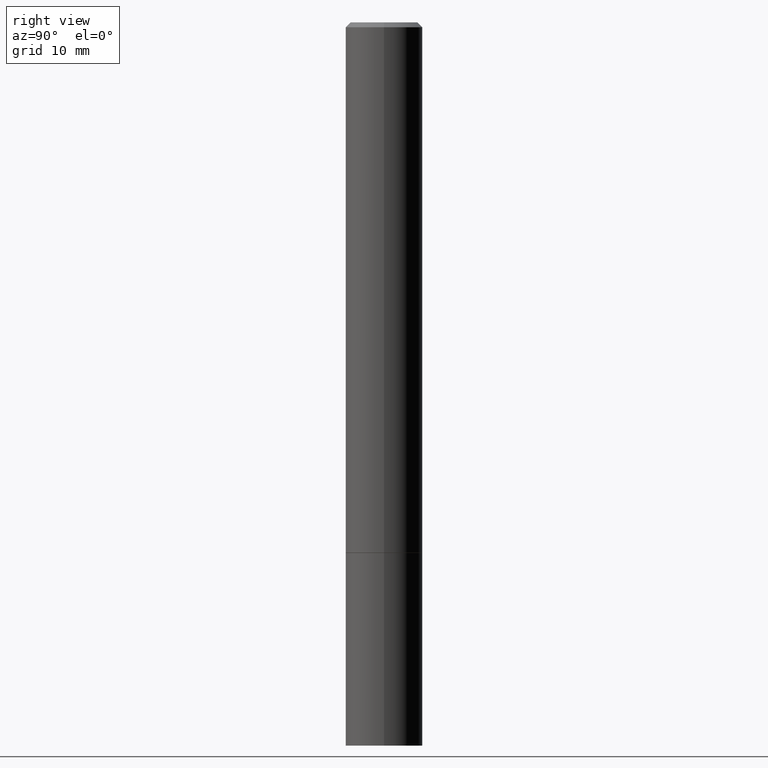
[diagram: clean part render]
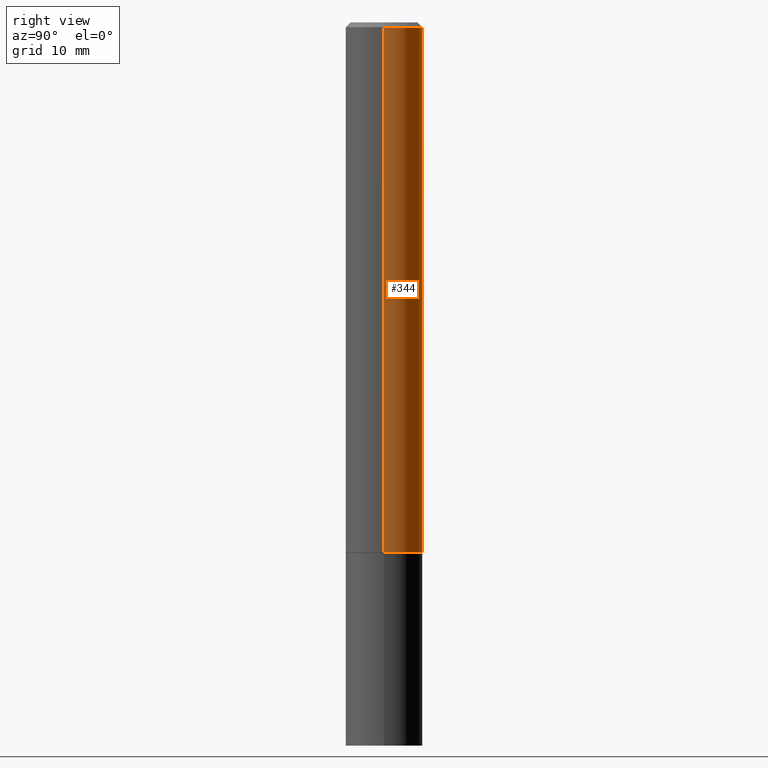
[diagram: same view with one face highlighted and labeled with its STEP entity id]
A machine part, right view. The second image highlights one B-rep face of the part: STEP entity #344.
In plain terms, the highlighted cylindrical surface (partial cylindrical patch) has radius 4.0005 mm, axis along (-0, 0, 1).
Its self-contained STEP definition (entity closure, byte-faithful):
#3 = CARTESIAN_POINT ( 'NONE',  ( 0.1574999999999999178, -8.656778831527689529E-15, -2.164399999999999658 ) ) ;
#4 = CARTESIAN_POINT ( 'NONE',  ( 4.890937612370282792E-31, -6.982962677686303935E-17, -0.02000000000000003858 ) ) ;
#6 = DIRECTION ( 'NONE',  ( -2.445468806185136597E-29, 3.491481338843145583E-15, 1.000000000000000000 ) ) ;
#9 = CARTESIAN_POINT ( 'NONE',  ( 0.000000000000000000, 0.000000000000000000, 0.000000000000000000 ) ) ;
#23 = CARTESIAN_POINT ( 'NONE',  ( 5.292972684107108742E-29, -7.556962209792102838E-15, -2.164399999999999658 ) ) ;
#30 = FACE_OUTER_BOUND ( 'NONE', #66, .T. ) ;
#34 = CARTESIAN_POINT ( 'NONE',  ( 0.1574999999999998346, -1.099816621735585705E-15, 7.679978421878591026E-30 ) ) ;
#47 = DIRECTION ( 'NONE',  ( -2.445468806185136597E-29, 3.491481338843145583E-15, 1.000000000000000000 ) ) ;
#48 = CARTESIAN_POINT ( 'NONE',  ( -0.1574999999999999178, -2.694291109462323887E-15, -2.164399999999999658 ) ) ;
#54 = EDGE_CURVE ( 'NONE', #157, #229, #110, .T. ) ;
#55 = DIRECTION ( 'NONE',  ( 1.000000000000000000, -6.982962677686265922E-15, 4.876176775795935793E-29 ) ) ;
#66 = EDGE_LOOP ( 'NONE', ( #204, #227, #130, #156 ) ) ;
#78 = VECTOR ( 'NONE', #186, 39.37007874015748143 ) ;
#87 = DIRECTION ( 'NONE',  ( -2.445468806185136877E-29, 3.491481338843145188E-15, 1.000000000000000000 ) ) ;
#105 = EDGE_CURVE ( 'NONE', #229, #125, #366, .T. ) ;
#110 = CIRCLE ( 'NONE', #233, 0.1574999999999999178 ) ;
#120 = LINE ( 'NONE', #34, #289 ) ;
#125 = VERTEX_POINT ( 'NONE', #209 ) ;
#130 = ORIENTED_EDGE ( 'NONE', *, *, #245, .F. ) ;
#156 = ORIENTED_EDGE ( 'NONE', *, *, #348, .F. ) ;
#157 = VERTEX_POINT ( 'NONE', #3 ) ;
#167 = DIRECTION ( 'NONE',  ( 1.000000000000000000, -6.982962677686265922E-15, 0.000000000000000000 ) ) ;
#186 = DIRECTION ( 'NONE',  ( -2.445468806185136877E-29, 3.491481338843145188E-15, 1.000000000000000000 ) ) ;
#192 = CYLINDRICAL_SURFACE ( 'NONE', #219, 0.1574999999999998346 ) ;
#204 = ORIENTED_EDGE ( 'NONE', *, *, #54, .T. ) ;
#209 = CARTESIAN_POINT ( 'NONE',  ( -0.1574999999999996958, 1.029986994958721618E-15, -0.02000000000000003858 ) ) ;
#216 = CARTESIAN_POINT ( 'NONE',  ( 0.1574999999999996958, -1.150358061425877105E-15, -0.02000000000000003858 ) ) ;
#219 = AXIS2_PLACEMENT_3D ( 'NONE', #9, #340, #55 ) ;
#227 = ORIENTED_EDGE ( 'NONE', *, *, #105, .T. ) ;
#229 = VERTEX_POINT ( 'NONE', #48 ) ;
#233 = AXIS2_PLACEMENT_3D ( 'NONE', #23, #47, #244 ) ;
#234 = AXIS2_PLACEMENT_3D ( 'NONE', #4, #6, #167 ) ;
#244 = DIRECTION ( 'NONE',  ( 1.000000000000000000, -6.982962677686265922E-15, 0.000000000000000000 ) ) ;
#245 = EDGE_CURVE ( 'NONE', #262, #125, #335, .T. ) ;
#262 = VERTEX_POINT ( 'NONE', #216 ) ;
#267 = CARTESIAN_POINT ( 'NONE',  ( -0.1574999999999998346, 1.119104808822156617E-15, -7.747322767151467176E-30 ) ) ;
#289 = VECTOR ( 'NONE', #87, 39.37007874015748143 ) ;
#335 = CIRCLE ( 'NONE', #234, 0.1574999999999996958 ) ;
#340 = DIRECTION ( 'NONE',  ( -2.445468806185136597E-29, 3.491481338843145583E-15, 1.000000000000000000 ) ) ;
#344 = ADVANCED_FACE ( 'NONE', ( #30 ), #192, .T. ) ;
#348 = EDGE_CURVE ( 'NONE', #157, #262, #120, .T. ) ;
#366 = LINE ( 'NONE', #267, #78 ) ;